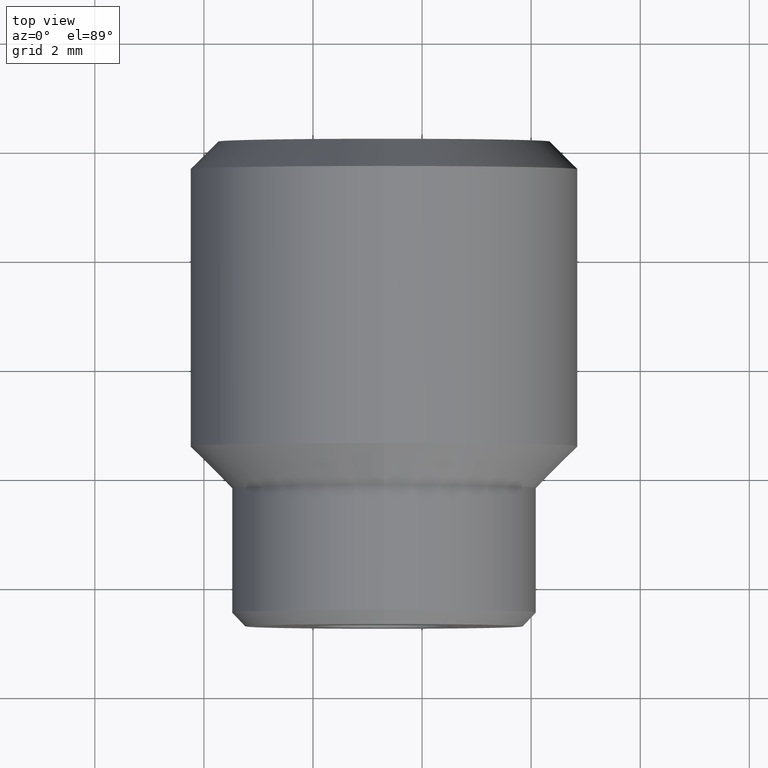
[diagram: clean part render]
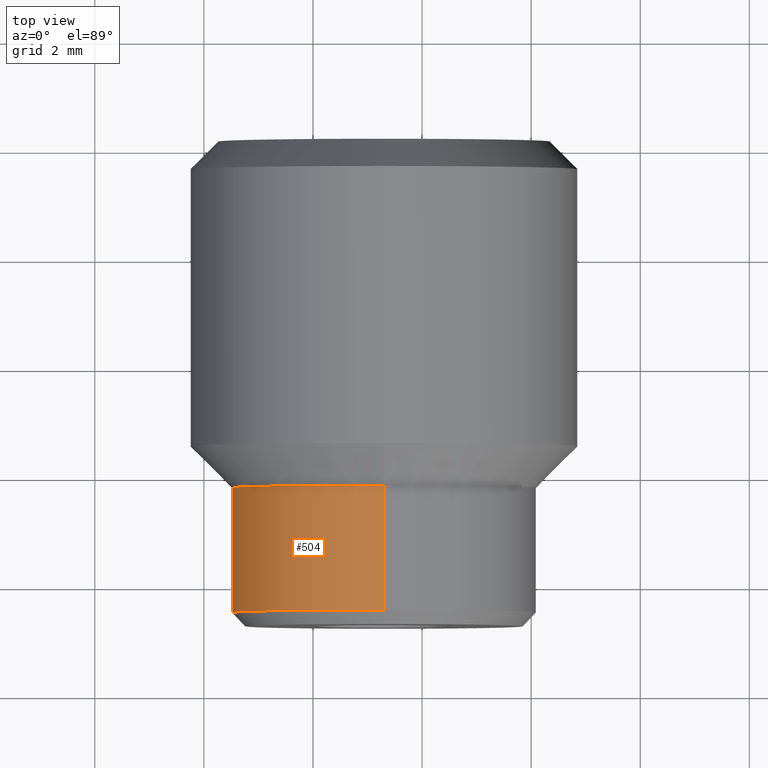
[diagram: same view with one face highlighted and labeled with its STEP entity id]
A machine part, top view. The second image highlights one B-rep face of the part: STEP entity #504.
In plain terms, the highlighted cylindrical surface (partial cylindrical patch) has radius 2.794 mm, axis along (-0, 1, -0).
Its self-contained STEP definition (entity closure, byte-faithful):
#4 = DIRECTION ( 'NONE',  ( -0.0000000000000000000, 1.000000000000000000, -0.0000000000000000000 ) ) ;
#19 = CARTESIAN_POINT ( 'NONE',  ( -0.8936271735354411900, 0.3858041395763716100, 0.1584913485094971700 ) ) ;
#70 = CARTESIAN_POINT ( 'NONE',  ( -0.8936271735354411900, 0.3858041395763716100, 0.2684913485094972400 ) ) ;
#110 = CARTESIAN_POINT ( 'NONE',  ( -0.8936271735354411900, 0.2958041395763715800, 0.04849134850949712200 ) ) ;
#127 = CARTESIAN_POINT ( 'NONE',  ( -0.8936271735354411900, 0.7798699709781208300, 0.04849134850949712200 ) ) ;
#176 = CARTESIAN_POINT ( 'NONE',  ( -0.8936271735354411900, 0.7798699709781208300, 0.2684913485094972400 ) ) ;
#182 = CARTESIAN_POINT ( 'NONE',  ( -0.8936271735354411900, 0.2958041395763715800, 0.1584913485094971700 ) ) ;
#192 = CARTESIAN_POINT ( 'NONE',  ( -0.8936271735354411900, 0.7798699709781208300, 0.1584913485094971700 ) ) ;
#227 = DIRECTION ( 'NONE',  ( -0.0000000000000000000, 1.000000000000000000, -0.0000000000000000000 ) ) ;
#240 = DIRECTION ( 'NONE',  ( -0.0000000000000000000, 1.000000000000000000, -0.0000000000000000000 ) ) ;
#244 = DIRECTION ( 'NONE',  ( -0.0000000000000000000, 1.000000000000000000, -0.0000000000000000000 ) ) ;
#274 = DIRECTION ( 'NONE',  ( -0.0000000000000000000, 1.000000000000000000, -0.0000000000000000000 ) ) ;
#300 = DIRECTION ( 'NONE',  ( 0.0000000000000000000, 0.0000000000000000000, 1.000000000000000000 ) ) ;
#317 = DIRECTION ( 'NONE',  ( 0.0000000000000000000, 0.0000000000000000000, 1.000000000000000000 ) ) ;
#321 = DIRECTION ( 'NONE',  ( 0.0000000000000000000, 0.0000000000000000000, 1.000000000000000000 ) ) ;
#348 = VECTOR ( 'NONE', #4, 39.37007874015748100 ) ;
#363 = VECTOR ( 'NONE', #240, 39.37007874015748100 ) ;
#405 = AXIS2_PLACEMENT_3D ( 'NONE', #192, #244, #321 ) ;
#472 = EDGE_CURVE ( 'NONE', #674, #821, #659, .T. ) ;
#482 = EDGE_CURVE ( 'NONE', #795, #731, #668, .T. ) ;
#504 = ADVANCED_FACE ( 'NONE', ( #709 ), #862, .T. ) ;
#521 = EDGE_CURVE ( 'NONE', #821, #731, #577, .T. ) ;
#537 = EDGE_CURVE ( 'NONE', #674, #795, #606, .T. ) ;
#577 = CIRCLE ( 'NONE', #591, 0.1100000000000000600 ) ;
#591 = AXIS2_PLACEMENT_3D ( 'NONE', #19, #274, #300 ) ;
#594 = AXIS2_PLACEMENT_3D ( 'NONE', #182, #227, #317 ) ;
#606 = CIRCLE ( 'NONE', #594, 0.1100000000000000600 ) ;
#628 = CARTESIAN_POINT ( 'NONE',  ( -0.8936271735354411900, 0.3858041395763716100, 0.04849134850949714200 ) ) ;
#640 = CARTESIAN_POINT ( 'NONE',  ( -0.8936271735354411900, 0.2958041395763715800, 0.2684913485094972400 ) ) ;
#659 = LINE ( 'NONE', #127, #348 ) ;
#668 = LINE ( 'NONE', #176, #363 ) ;
#670 = ORIENTED_EDGE ( 'NONE', *, *, #472, .F. ) ;
#674 = VERTEX_POINT ( 'NONE', #110 ) ;
#709 = FACE_OUTER_BOUND ( 'NONE', #778, .T. ) ;
#731 = VERTEX_POINT ( 'NONE', #70 ) ;
#743 = ORIENTED_EDGE ( 'NONE', *, *, #537, .T. ) ;
#747 = ORIENTED_EDGE ( 'NONE', *, *, #482, .T. ) ;
#771 = ORIENTED_EDGE ( 'NONE', *, *, #521, .F. ) ;
#778 = EDGE_LOOP ( 'NONE', ( #670, #743, #747, #771 ) ) ;
#795 = VERTEX_POINT ( 'NONE', #640 ) ;
#821 = VERTEX_POINT ( 'NONE', #628 ) ;
#862 = CYLINDRICAL_SURFACE ( 'NONE', #405, 0.1100000000000000600 ) ;